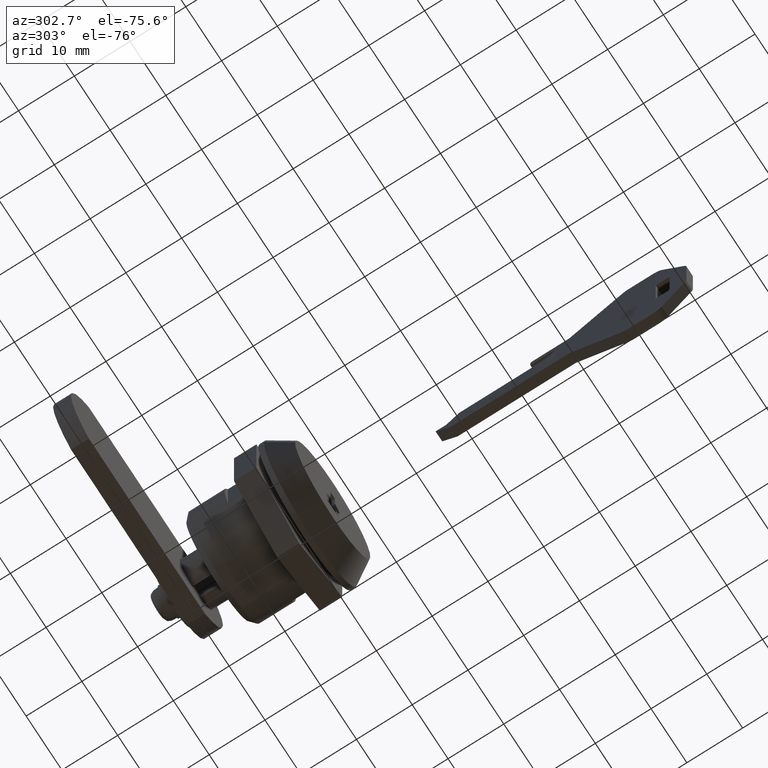
[diagram: clean part render]
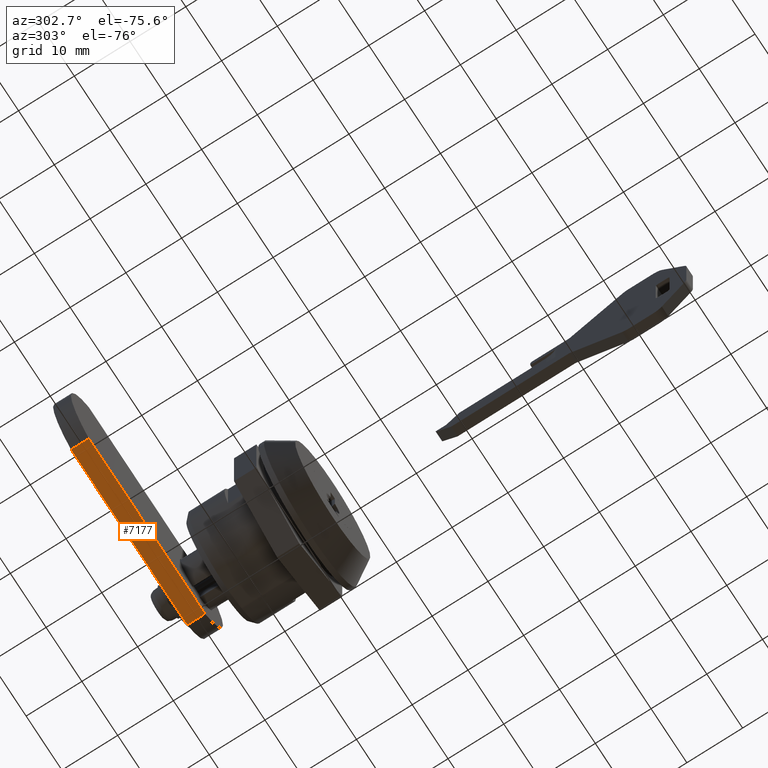
[diagram: same view with one face highlighted and labeled with its STEP entity id]
A machine part, auxiliary view. The second image highlights one B-rep face of the part: STEP entity #7177.
In plain terms, the highlighted face is a freeform B-spline surface patch.
Its self-contained STEP definition (entity closure, byte-faithful):
#7101=CARTESIAN_POINT('',(19.500009000000048,-2.480740698407570,-9.500000000000199));
#7102=VERTEX_POINT('',#7101);
#7118=CARTESIAN_POINT('',(22.700021000000000,-2.480740698407570,-9.500000000000199));
#7119=VERTEX_POINT('',#7118);
#7120=CARTESIAN_POINT('',(22.700021000000000,-2.480740698407570,-9.500000000000199));
#7121=CARTESIAN_POINT('',(19.500009000000048,-2.480740698407570,-9.500000000000199));
#7122=QUASI_UNIFORM_CURVE('',1,(#7120,#7121),.UNSPECIFIED.,.F.,.U.);
#7123=EDGE_CURVE('',#7119,#7102,#7122,.T.);
#7150=CARTESIAN_POINT('',(19.340168913213841,-4.102191935986999,-9.500000000000199));
#7151=CARTESIAN_POINT('',(19.340168913213841,31.602192516443509,-9.500000000000199));
#7152=CARTESIAN_POINT('',(22.859862374251371,-4.102191935986999,-9.500000000000199));
#7153=CARTESIAN_POINT('',(22.859862374251371,31.602192516443509,-9.500000000000199));
#7154=B_SPLINE_SURFACE_WITH_KNOTS('',1,1,((#7150,#7152),(#7151,#7153)),.UNSPECIFIED.,.F.,.F.,.U.,(2,2),(2,2),(0.0,35.704384452430503),(0.0,3.519693461037530),.UNSPECIFIED.);
#7155=CARTESIAN_POINT('',(19.500009000000048,29.980740698407551,-9.500000000000199));
#7156=VERTEX_POINT('',#7155);
#7157=CARTESIAN_POINT('',(19.500009000000048,29.980740698407551,-9.500000000000199));
#7158=CARTESIAN_POINT('',(19.500009000000048,-2.480740698407570,-9.500000000000199));
#7159=QUASI_UNIFORM_CURVE('',1,(#7157,#7158),.UNSPECIFIED.,.F.,.U.);
#7160=EDGE_CURVE('',#7156,#7102,#7159,.T.);
#7161=ORIENTED_EDGE('',*,*,#7160,.F.);
#7162=CARTESIAN_POINT('',(22.700021000000000,29.980740698407551,-9.500000000000199));
#7163=VERTEX_POINT('',#7162);
#7164=CARTESIAN_POINT('',(22.700021000000000,29.980740698407551,-9.500000000000199));
#7165=CARTESIAN_POINT('',(19.500009000000048,29.980740698407551,-9.500000000000199));
#7166=QUASI_UNIFORM_CURVE('',1,(#7164,#7165),.UNSPECIFIED.,.F.,.U.);
#7167=EDGE_CURVE('',#7163,#7156,#7166,.T.);
#7168=ORIENTED_EDGE('',*,*,#7167,.F.);
#7169=CARTESIAN_POINT('',(22.700021000000000,29.980740698407551,-9.500000000000199));
#7170=CARTESIAN_POINT('',(22.700021000000000,-2.480740698407570,-9.500000000000199));
#7171=QUASI_UNIFORM_CURVE('',1,(#7169,#7170),.UNSPECIFIED.,.F.,.U.);
#7172=EDGE_CURVE('',#7163,#7119,#7171,.T.);
#7173=ORIENTED_EDGE('',*,*,#7172,.T.);
#7174=ORIENTED_EDGE('',*,*,#7123,.T.);
#7175=EDGE_LOOP('',(#7161,#7168,#7173,#7174));
#7176=FACE_OUTER_BOUND('',#7175,.T.);
#7177=ADVANCED_FACE('',(#7176),#7154,.T.);